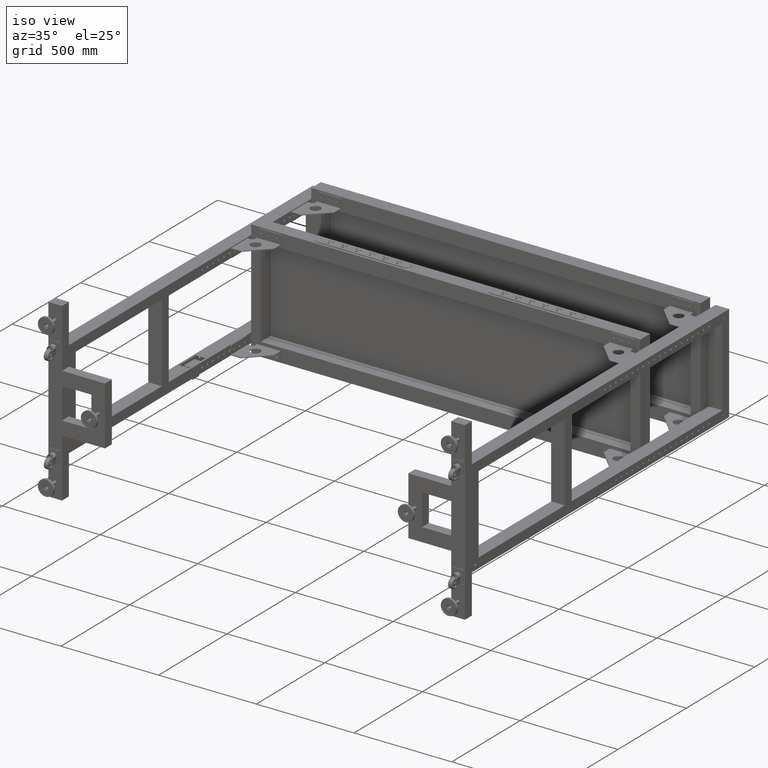
[diagram: clean part render]
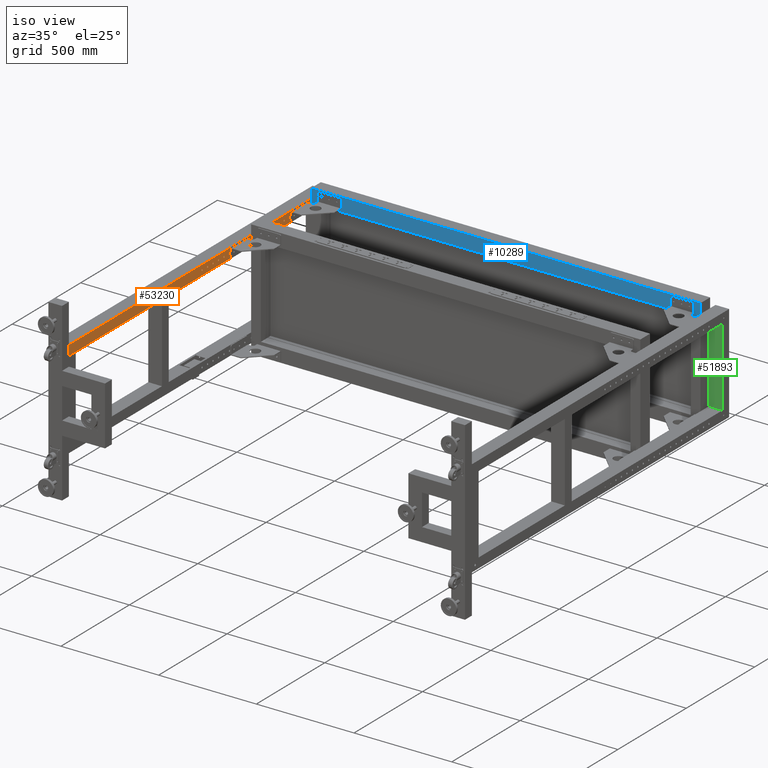
[diagram: same view with three faces highlighted in distinct colors, each labeled with its STEP entity id]
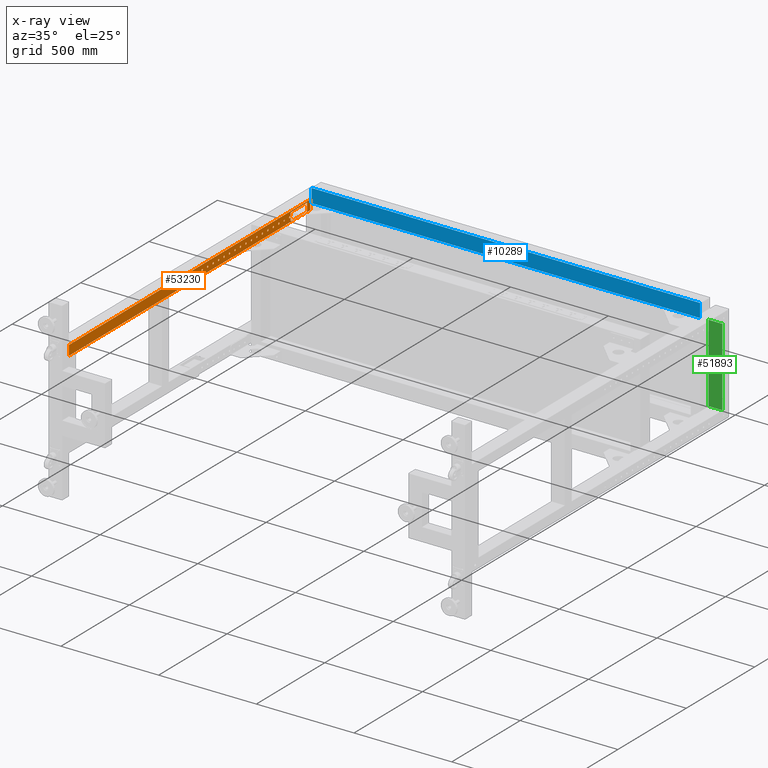
[diagram: x-ray of the same camera — body ghosted, the three highlighted faces saturated]
A machine part, iso view with three faces highlighted in distinct colors.
The next image is the same camera in x-ray (body ghosted, the three faces saturated) — at least one of them is partly hidden behind the body in this view.
Their STEP definitions:

[orange] entity #53230 — the highlighted planar face has unit normal (-1, 0, 0).
#255 = CARTESIAN_POINT ( 'NONE',  ( -1268.172487437185055, 364.9410804020110959, 224.9999999999963336 ) ) ;
#304 = ORIENTED_EDGE ( 'NONE', *, *, #18096, .F. ) ;
#443 = DIRECTION ( 'NONE',  ( 1.000000000000000000, 0.000000000000000000, 0.000000000000000000 ) ) ;
#585 = VERTEX_POINT ( 'NONE', #9826 ) ;
#763 = VERTEX_POINT ( 'NONE', #42934 ) ;
#844 = EDGE_CURVE ( 'NONE', #18173, #3304, #72174, .T. ) ;
#950 = AXIS2_PLACEMENT_3D ( 'NONE', #33397, #32191, #2284 ) ;
#1334 = EDGE_CURVE ( 'NONE', #63176, #585, #38440, .T. ) ;
#1616 = CARTESIAN_POINT ( 'NONE',  ( -1268.172487437185055, 919.4410804020111527, 199.9999999999999716 ) ) ;
#1707 = ORIENTED_EDGE ( 'NONE', *, *, #4504, .T. ) ;
#2150 = EDGE_CURVE ( 'NONE', #75095, #62785, #9553, .T. ) ;
#2190 = EDGE_CURVE ( 'NONE', #62785, #75095, #39591, .T. ) ;
#2284 = DIRECTION ( 'NONE',  ( 0.000000000000000000, 1.000000000000000000, 0.000000000000000000 ) ) ;
#2298 = EDGE_CURVE ( 'NONE', #25964, #11524, #22629, .T. ) ;
#2352 = EDGE_LOOP ( 'NONE', ( #54598, #62396 ) ) ;
#2911 = DIRECTION ( 'NONE',  ( 1.000000000000000000, 0.000000000000000000, 0.000000000000000000 ) ) ;
#3152 = AXIS2_PLACEMENT_3D ( 'NONE', #21071, #46467, #34201 ) ;
#3162 = CIRCLE ( 'NONE', #73711, 4.500000000000059508 ) ;
#3205 = ORIENTED_EDGE ( 'NONE', *, *, #59748, .T. ) ;
#3304 = VERTEX_POINT ( 'NONE', #31619 ) ;
#3350 = FACE_BOUND ( 'NONE', #62512, .T. ) ;
#3515 = LINE ( 'NONE', #28465, #47273 ) ;
#3748 = DIRECTION ( 'NONE',  ( 0.000000000000000000, -1.000000000000000000, 0.000000000000000000 ) ) ;
#4258 = DIRECTION ( 'NONE',  ( 0.000000000000000000, 1.000000000000000000, 0.000000000000000000 ) ) ;
#4504 = EDGE_CURVE ( 'NONE', #14415, #30715, #23072, .T. ) ;
#4596 = DIRECTION ( 'NONE',  ( 1.000000000000000000, 0.000000000000000000, 0.000000000000000000 ) ) ;
#4684 = CARTESIAN_POINT ( 'NONE',  ( -1268.172487437185055, -844.5589195979888473, 199.9999999999999716 ) ) ;
#4725 = AXIS2_PLACEMENT_3D ( 'NONE', #80075, #55517, #71683 ) ;
#4988 = CARTESIAN_POINT ( 'NONE',  ( -1268.172487437185055, 533.9410804020110390, 224.9999999999974705 ) ) ;
#5085 = EDGE_CURVE ( 'NONE', #763, #25044, #35966, .T. ) ;
#5182 = CARTESIAN_POINT ( 'NONE',  ( -1268.172487437185055, 729.4410804020110390, 224.9999999999988631 ) ) ;
#5866 = EDGE_LOOP ( 'NONE', ( #71633, #62688 ) ) ;
#5903 = CIRCLE ( 'NONE', #58185, 4.500000000000059508 ) ;
#5966 = DIRECTION ( 'NONE',  ( 0.000000000000000000, 1.000000000000000000, 0.000000000000000000 ) ) ;
#6259 = DIRECTION ( 'NONE',  ( 0.000000000000000000, 1.000000000000000000, 0.000000000000000000 ) ) ;
#6317 = VERTEX_POINT ( 'NONE', #53225 ) ;
#6800 = CIRCLE ( 'NONE', #27697, 4.499999999999948486 ) ;
#6907 = AXIS2_PLACEMENT_3D ( 'NONE', #38563, #7851, #19297 ) ;
#6953 = AXIS2_PLACEMENT_3D ( 'NONE', #66682, #2911, #46669 ) ;
#7021 = ORIENTED_EDGE ( 'NONE', *, *, #52896, .F. ) ;
#7024 = ORIENTED_EDGE ( 'NONE', *, *, #48339, .F. ) ;
#7488 = AXIS2_PLACEMENT_3D ( 'NONE', #31889, #61743, #56835 ) ;
#7680 = ORIENTED_EDGE ( 'NONE', *, *, #20354, .F. ) ;
#7851 = DIRECTION ( 'NONE',  ( 1.000000000000000000, 0.000000000000000000, 0.000000000000000000 ) ) ;
#7970 = CARTESIAN_POINT ( 'NONE',  ( -1268.172487437185055, 444.9410804020111527, 224.9999999999969020 ) ) ;
#8279 = AXIS2_PLACEMENT_3D ( 'NONE', #26239, #38539, #57746 ) ;
#8621 = ORIENTED_EDGE ( 'NONE', *, *, #48824, .F. ) ;
#8665 = FACE_BOUND ( 'NONE', #2352, .T. ) ;
#8751 = DIRECTION ( 'NONE',  ( 1.000000000000000000, 0.000000000000000000, 0.000000000000000000 ) ) ;
#9067 = FACE_BOUND ( 'NONE', #19549, .T. ) ;
#9272 = AXIS2_PLACEMENT_3D ( 'NONE', #74602, #61511, #23842 ) ;
#9460 = CARTESIAN_POINT ( 'NONE',  ( -1268.172487437185055, 173.9410804020110675, 224.9999999999949409 ) ) ;
#9553 = CIRCLE ( 'NONE', #27842, 4.499999999999948486 ) ;
#9826 = CARTESIAN_POINT ( 'NONE',  ( -1268.172487437185055, 484.9410804020110959, 224.9999999999972147 ) ) ;
#9863 = ORIENTED_EDGE ( 'NONE', *, *, #24321, .T. ) ;
#10184 = CARTESIAN_POINT ( 'NONE',  ( -1268.172487437185055, 724.9410804020111527, 224.9999999999988631 ) ) ;
#10392 = CARTESIAN_POINT ( 'NONE',  ( -1268.172487437185964, 782.9410804020111527, 207.9999999999982094 ) ) ;
#10660 = CIRCLE ( 'NONE', #56422, 4.500000000000059508 ) ;
#10786 = ORIENTED_EDGE ( 'NONE', *, *, #14738, .F. ) ;
#10801 = DIRECTION ( 'NONE',  ( -1.000000000000000000, -2.775557561562891295E-29, -3.491776919586969661E-17 ) ) ;
#10839 = VERTEX_POINT ( 'NONE', #12056 ) ;
#11524 = VERTEX_POINT ( 'NONE', #18685 ) ;
#11618 = CARTESIAN_POINT ( 'NONE',  ( -1268.172487437185055, 453.9410804020110959, 224.9999999999969020 ) ) ;
#11845 = CIRCLE ( 'NONE', #45845, 4.499999999999948486 ) ;
#12056 = CARTESIAN_POINT ( 'NONE',  ( -1268.172487437185055, 204.9410804020110959, 224.9999999999952252 ) ) ;
#12189 = VERTEX_POINT ( 'NONE', #44696 ) ;
#12407 = DIRECTION ( 'NONE',  ( 1.000000000000000000, 0.000000000000000000, 0.000000000000000000 ) ) ;
#12488 = CIRCLE ( 'NONE', #58222, 4.500000000000059508 ) ;
#12525 = CARTESIAN_POINT ( 'NONE',  ( -1268.172487437185055, 209.4410804020111527, 224.9999999999952252 ) ) ;
#12541 = CIRCLE ( 'NONE', #4725, 4.499999999999948486 ) ;
#12589 = EDGE_CURVE ( 'NONE', #66595, #66963, #37346, .T. ) ;
#13206 = VECTOR ( 'NONE', #18726, 1000.000000000000000 ) ;
#13294 = CARTESIAN_POINT ( 'NONE',  ( -1268.172487437185055, 609.4410804020111527, 224.9999999999980389 ) ) ;
#13488 = CARTESIAN_POINT ( 'NONE',  ( -1268.172487437185055, 409.4410804020110959, 224.9999999999966178 ) ) ;
#14273 = DIRECTION ( 'NONE',  ( 0.000000000000000000, 1.000000000000000000, 0.000000000000000000 ) ) ;
#14395 = CARTESIAN_POINT ( 'NONE',  ( -1268.172487437185055, -844.5589195979888473, 249.9999999999999716 ) ) ;
#14415 = VERTEX_POINT ( 'NONE', #59599 ) ;
#14430 = CARTESIAN_POINT ( 'NONE',  ( -1268.172487437185055, 564.9410804020111527, 224.9999999999977547 ) ) ;
#14600 = VERTEX_POINT ( 'NONE', #255 ) ;
#14738 = EDGE_CURVE ( 'NONE', #49971, #66651, #50573, .T. ) ;
#15103 = VERTEX_POINT ( 'NONE', #14395 ) ;
#15377 = EDGE_LOOP ( 'NONE', ( #47824, #43029, #46180, #20370 ) ) ;
#15454 = VERTEX_POINT ( 'NONE', #78040 ) ;
#15579 = FACE_BOUND ( 'NONE', #37793, .T. ) ;
#15922 = DIRECTION ( 'NONE',  ( 0.000000000000000000, 1.000000000000000000, 0.000000000000000000 ) ) ;
#16018 = CIRCLE ( 'NONE', #61801, 4.500000000000059508 ) ;
#16099 = CARTESIAN_POINT ( 'NONE',  ( -1268.172487437185964, 775.9410804020110390, 243.9899999999981901 ) ) ;
#16121 = CARTESIAN_POINT ( 'NONE',  ( -1268.172487437185055, 124.9410804020111243, 224.9999999999946851 ) ) ;
#16323 = EDGE_LOOP ( 'NONE', ( #67372, #40794 ) ) ;
#16465 = LINE ( 'NONE', #58650, #33253 ) ;
#16594 = ORIENTED_EDGE ( 'NONE', *, *, #37376, .F. ) ;
#16615 = EDGE_LOOP ( 'NONE', ( #59078, #48845 ) ) ;
#16635 = VECTOR ( 'NONE', #75260, 1000.000000000000000 ) ;
#16637 = LINE ( 'NONE', #79289, #60169 ) ;
#16937 = CIRCLE ( 'NONE', #36613, 4.499999999999948486 ) ;
#17532 = CARTESIAN_POINT ( 'NONE',  ( -1268.172487437185055, 773.9410804020111527, 224.9999999999991473 ) ) ;
#17624 = AXIS2_PLACEMENT_3D ( 'NONE', #22089, #40924, #64671 ) ;
#18018 = CARTESIAN_POINT ( 'NONE',  ( -1268.172487437185055, 289.4410804020110959, 224.9999999999957936 ) ) ;
#18096 = EDGE_CURVE ( 'NONE', #54607, #69980, #60028, .T. ) ;
#18173 = VERTEX_POINT ( 'NONE', #4988 ) ;
#18685 = CARTESIAN_POINT ( 'NONE',  ( -1268.172487437185055, 133.9410804020111243, 224.9999999999946851 ) ) ;
#18726 = DIRECTION ( 'NONE',  ( 4.498682352102549724E-16, 7.000000000000000150E-15, -1.000000000000000000 ) ) ;
#18988 = DIRECTION ( 'NONE',  ( -1.000000000000000000, -2.775557561562891295E-29, -3.491776919586969661E-17 ) ) ;
#19297 = DIRECTION ( 'NONE',  ( 0.000000000000000000, 1.000000000000000000, 0.000000000000000000 ) ) ;
#19326 = ORIENTED_EDGE ( 'NONE', *, *, #2298, .F. ) ;
#19361 = DIRECTION ( 'NONE',  ( 2.800000000000000233E-29, -1.000000000000000000, -7.000000000000000150E-15 ) ) ;
#19483 = EDGE_LOOP ( 'NONE', ( #24129, #56275 ) ) ;
#19549 = EDGE_LOOP ( 'NONE', ( #29026, #56883 ) ) ;
#20354 = EDGE_CURVE ( 'NONE', #6317, #48976, #36981, .T. ) ;
#20370 = ORIENTED_EDGE ( 'NONE', *, *, #42429, .T. ) ;
#20461 = CARTESIAN_POINT ( 'NONE',  ( -1268.172487437185055, 369.4410804020110959, 224.9999999999963336 ) ) ;
#20508 = EDGE_CURVE ( 'NONE', #68838, #14600, #63091, .T. ) ;
#20570 = EDGE_CURVE ( 'NONE', #72768, #12189, #16018, .T. ) ;
#21071 = CARTESIAN_POINT ( 'NONE',  ( -1268.172487437185055, 489.4410804020110959, 224.9999999999971863 ) ) ;
#21183 = DIRECTION ( 'NONE',  ( 0.000000000000000000, 0.000000000000000000, 1.000000000000000000 ) ) ;
#21198 = DIRECTION ( 'NONE',  ( 0.000000000000000000, 1.000000000000000000, 0.000000000000000000 ) ) ;
#21323 = FACE_BOUND ( 'NONE', #5866, .T. ) ;
#22089 = CARTESIAN_POINT ( 'NONE',  ( -1268.172487437185055, 689.4410804020111527, 224.9999999999985789 ) ) ;
#22140 = FACE_BOUND ( 'NONE', #30405, .T. ) ;
#22419 = CARTESIAN_POINT ( 'NONE',  ( -1268.172487437185055, 729.4410804020110390, 224.9999999999988631 ) ) ;
#22619 = EDGE_CURVE ( 'NONE', #70600, #66651, #3515, .T. ) ;
#22629 = CIRCLE ( 'NONE', #6953, 4.500000000000059508 ) ;
#22896 = CARTESIAN_POINT ( 'NONE',  ( -1268.172487437185055, 249.4410804020110675, 224.9999999999955094 ) ) ;
#23072 = LINE ( 'NONE', #73007, #76419 ) ;
#23528 = CARTESIAN_POINT ( 'NONE',  ( -1268.172487437185055, 169.4410804020111243, 224.9999999999949409 ) ) ;
#23811 = EDGE_CURVE ( 'NONE', #25044, #763, #6800, .T. ) ;
#23842 = DIRECTION ( 'NONE',  ( 0.000000000000000000, 1.000000000000000000, 0.000000000000000000 ) ) ;
#24022 = ORIENTED_EDGE ( 'NONE', *, *, #2150, .F. ) ;
#24068 = DIRECTION ( 'NONE',  ( 1.000000000000000000, 0.000000000000000000, 0.000000000000000000 ) ) ;
#24129 = ORIENTED_EDGE ( 'NONE', *, *, #38270, .F. ) ;
#24251 = CARTESIAN_POINT ( 'NONE',  ( -1268.172487437185055, 244.9410804020111243, 224.9999999999955094 ) ) ;
#24321 = EDGE_CURVE ( 'NONE', #49971, #40949, #64138, .T. ) ;
#24495 = CARTESIAN_POINT ( 'NONE',  ( -1268.172487437185964, 896.9410804020112664, 207.9999999999990052 ) ) ;
#25044 = VERTEX_POINT ( 'NONE', #37788 ) ;
#25149 = VERTEX_POINT ( 'NONE', #63150 ) ;
#25916 = AXIS2_PLACEMENT_3D ( 'NONE', #30338, #41785, #42999 ) ;
#25964 = VERTEX_POINT ( 'NONE', #16121 ) ;
#26239 = CARTESIAN_POINT ( 'NONE',  ( -1268.172487437185055, 569.4410804020111527, 224.9999999999977547 ) ) ;
#26543 = EDGE_LOOP ( 'NONE', ( #64038, #31502 ) ) ;
#27078 = DIRECTION ( 'NONE',  ( -1.000000000000000000, 0.000000000000000000, 0.000000000000000000 ) ) ;
#27254 = AXIS2_PLACEMENT_3D ( 'NONE', #10392, #10801, #35772 ) ;
#27483 = FACE_BOUND ( 'NONE', #19483, .T. ) ;
#27504 = CIRCLE ( 'NONE', #77161, 4.500000000000059508 ) ;
#27697 = AXIS2_PLACEMENT_3D ( 'NONE', #40675, #60302, #4258 ) ;
#27838 = DIRECTION ( 'NONE',  ( 1.000000000000000000, 0.000000000000000000, 0.000000000000000000 ) ) ;
#27842 = AXIS2_PLACEMENT_3D ( 'NONE', #50818, #64279, #75764 ) ;
#27893 = FACE_BOUND ( 'NONE', #67918, .T. ) ;
#28210 = AXIS2_PLACEMENT_3D ( 'NONE', #5182, #48558, #37098 ) ;
#28297 = FACE_BOUND ( 'NONE', #69956, .T. ) ;
#28406 = DIRECTION ( 'NONE',  ( 2.800000000000000233E-29, -1.000000000000000000, -7.000000000000000150E-15 ) ) ;
#28452 = DIRECTION ( 'NONE',  ( 1.000000000000000000, 0.000000000000000000, 0.000000000000000000 ) ) ;
#28465 = CARTESIAN_POINT ( 'NONE',  ( -1268.172487437185964, 775.9410804020110390, 243.9999999999984368 ) ) ;
#28969 = DIRECTION ( 'NONE',  ( 0.000000000000000000, 1.000000000000000000, 0.000000000000000000 ) ) ;
#29026 = ORIENTED_EDGE ( 'NONE', *, *, #20508, .F. ) ;
#29371 = CARTESIAN_POINT ( 'NONE',  ( -1268.172487437185055, 293.9410804020111527, 224.9999999999957936 ) ) ;
#29839 = CARTESIAN_POINT ( 'NONE',  ( -1268.172487437185055, 733.9410804020111527, 224.9999999999988631 ) ) ;
#29905 = CIRCLE ( 'NONE', #27254, 7.000000000000006217 ) ;
#29926 = CIRCLE ( 'NONE', #73011, 4.499999999999948486 ) ;
#30143 = DIRECTION ( 'NONE',  ( 1.000000000000000000, 0.000000000000000000, 0.000000000000000000 ) ) ;
#30338 = CARTESIAN_POINT ( 'NONE',  ( -1268.172487437185055, 209.4410804020111527, 224.9999999999952252 ) ) ;
#30405 = EDGE_LOOP ( 'NONE', ( #74976, #78472 ) ) ;
#30519 = VERTEX_POINT ( 'NONE', #38184 ) ;
#30715 = VERTEX_POINT ( 'NONE', #72886 ) ;
#31081 = CIRCLE ( 'NONE', #46763, 4.499999999999948486 ) ;
#31336 = DIRECTION ( 'NONE',  ( 1.000000000000000000, 0.000000000000000000, 0.000000000000000000 ) ) ;
#31502 = ORIENTED_EDGE ( 'NONE', *, *, #59026, .F. ) ;
#31619 = CARTESIAN_POINT ( 'NONE',  ( -1268.172487437185055, 524.9410804020111527, 224.9999999999974705 ) ) ;
#31715 = DIRECTION ( 'NONE',  ( 1.000000000000000000, 0.000000000000000000, 0.000000000000000000 ) ) ;
#31889 = CARTESIAN_POINT ( 'NONE',  ( -1268.172487437185055, 489.4410804020110959, 224.9999999999971863 ) ) ;
#32066 = CARTESIAN_POINT ( 'NONE',  ( -1268.172487437185055, 409.4410804020110959, 224.9999999999966178 ) ) ;
#32131 = EDGE_LOOP ( 'NONE', ( #45094, #7680 ) ) ;
#32191 = DIRECTION ( 'NONE',  ( 1.000000000000000000, 0.000000000000000000, 0.000000000000000000 ) ) ;
#32236 = CARTESIAN_POINT ( 'NONE',  ( -1268.172487437185964, 775.9410804020112664, 207.9999999999981526 ) ) ;
#32476 = CIRCLE ( 'NONE', #25916, 4.500000000000059508 ) ;
#32659 = AXIS2_PLACEMENT_3D ( 'NONE', #49176, #4596, #74122 ) ;
#32795 = CARTESIAN_POINT ( 'NONE',  ( -1268.172487437185055, 493.9410804020110959, 224.9999999999971863 ) ) ;
#32910 = CARTESIAN_POINT ( 'NONE',  ( -1268.172487437185964, 775.9410804020110390, 243.9899999999981901 ) ) ;
#33253 = VECTOR ( 'NONE', #34922, 1000.000000000000000 ) ;
#33397 = CARTESIAN_POINT ( 'NONE',  ( -1268.172487437185055, 329.4410804020111527, 224.9999999999960778 ) ) ;
#33638 = FACE_BOUND ( 'NONE', #41228, .T. ) ;
#33839 = EDGE_CURVE ( 'NONE', #60948, #10839, #56632, .T. ) ;
#33889 = DIRECTION ( 'NONE',  ( 0.000000000000000000, 1.000000000000000000, 0.000000000000000000 ) ) ;
#34201 = DIRECTION ( 'NONE',  ( 0.000000000000000000, 1.000000000000000000, 0.000000000000000000 ) ) ;
#34263 = VERTEX_POINT ( 'NONE', #4684 ) ;
#34316 = LINE ( 'NONE', #1616, #62751 ) ;
#34922 = DIRECTION ( 'NONE',  ( 0.000000000000000000, 0.000000000000000000, 1.000000000000000000 ) ) ;
#35079 = VERTEX_POINT ( 'NONE', #7970 ) ;
#35142 = AXIS2_PLACEMENT_3D ( 'NONE', #51336, #18988, #51738 ) ;
#35772 = DIRECTION ( 'NONE',  ( 0.000000000000000000, 0.000000000000000000, 1.000000000000000000 ) ) ;
#35872 = DIRECTION ( 'NONE',  ( 1.000000000000000000, 0.000000000000000000, 0.000000000000000000 ) ) ;
#35966 = CIRCLE ( 'NONE', #17624, 4.499999999999948486 ) ;
#36204 = CIRCLE ( 'NONE', #950, 4.500000000000059508 ) ;
#36234 = AXIS2_PLACEMENT_3D ( 'NONE', #78634, #27078, #3748 ) ;
#36470 = EDGE_CURVE ( 'NONE', #14600, #68838, #3162, .T. ) ;
#36613 = AXIS2_PLACEMENT_3D ( 'NONE', #53502, #78455, #33889 ) ;
#36859 = EDGE_LOOP ( 'NONE', ( #47590, #59265 ) ) ;
#36967 = CARTESIAN_POINT ( 'NONE',  ( -1268.172487437185055, 249.4410804020110675, 224.9999999999955094 ) ) ;
#36981 = CIRCLE ( 'NONE', #64353, 4.499999999999948486 ) ;
#37098 = DIRECTION ( 'NONE',  ( 0.000000000000000000, 1.000000000000000000, 0.000000000000000000 ) ) ;
#37216 = DIRECTION ( 'NONE',  ( 0.000000000000000000, 1.000000000000000000, 0.000000000000000000 ) ) ;
#37308 = CARTESIAN_POINT ( 'NONE',  ( -1268.172487437185055, 649.4410804020110390, 224.9999999999983231 ) ) ;
#37346 = CIRCLE ( 'NONE', #45218, 4.500000000000059508 ) ;
#37376 = EDGE_CURVE ( 'NONE', #25149, #55292, #5903, .T. ) ;
#37567 = CARTESIAN_POINT ( 'NONE',  ( -1268.172487437185055, 333.9410804020110959, 224.9999999999960778 ) ) ;
#37758 = FACE_OUTER_BOUND ( 'NONE', #15377, .T. ) ;
#37788 = CARTESIAN_POINT ( 'NONE',  ( -1268.172487437185055, 684.9410804020110390, 224.9999999999985789 ) ) ;
#37793 = EDGE_LOOP ( 'NONE', ( #8621, #53345 ) ) ;
#37844 = CIRCLE ( 'NONE', #58727, 4.499999999999948486 ) ;
#38184 = CARTESIAN_POINT ( 'NONE',  ( -1268.172487437185055, 604.9410804020111527, 224.9999999999980389 ) ) ;
#38270 = EDGE_CURVE ( 'NONE', #60655, #59306, #71357, .T. ) ;
#38306 = EDGE_CURVE ( 'NONE', #61603, #35079, #12541, .T. ) ;
#38440 = CIRCLE ( 'NONE', #3152, 4.500000000000003553 ) ;
#38527 = DIRECTION ( 'NONE',  ( 1.000000000000000000, 0.000000000000000000, 0.000000000000000000 ) ) ;
#38539 = DIRECTION ( 'NONE',  ( 1.000000000000000000, 0.000000000000000000, 0.000000000000000000 ) ) ;
#38563 = CARTESIAN_POINT ( 'NONE',  ( -1268.172487437185055, 449.4410804020111527, 224.9999999999969020 ) ) ;
#38971 = CARTESIAN_POINT ( 'NONE',  ( -1268.172487437185055, 653.9410804020111527, 224.9999999999983231 ) ) ;
#39362 = CIRCLE ( 'NONE', #9272, 4.499999999999948486 ) ;
#39591 = CIRCLE ( 'NONE', #8279, 4.499999999999948486 ) ;
#39687 = VERTEX_POINT ( 'NONE', #17532 ) ;
#40059 = CARTESIAN_POINT ( 'NONE',  ( -1268.172487437185055, 613.9410804020111527, 224.9999999999980389 ) ) ;
#40232 = CARTESIAN_POINT ( 'NONE',  ( -1268.172487437185055, 404.9410804020111527, 224.9999999999966178 ) ) ;
#40675 = CARTESIAN_POINT ( 'NONE',  ( -1268.172487437185055, 689.4410804020111527, 224.9999999999985789 ) ) ;
#40794 = ORIENTED_EDGE ( 'NONE', *, *, #12589, .F. ) ;
#40924 = DIRECTION ( 'NONE',  ( 1.000000000000000000, 0.000000000000000000, 0.000000000000000000 ) ) ;
#40949 = VERTEX_POINT ( 'NONE', #24495 ) ;
#41012 = EDGE_CURVE ( 'NONE', #15103, #15454, #67488, .T. ) ;
#41228 = EDGE_LOOP ( 'NONE', ( #7024, #60784 ) ) ;
#41785 = DIRECTION ( 'NONE',  ( 1.000000000000000000, 0.000000000000000000, 0.000000000000000000 ) ) ;
#41971 = DIRECTION ( 'NONE',  ( 0.000000000000000000, 1.000000000000000000, 0.000000000000000000 ) ) ;
#42098 = DIRECTION ( 'NONE',  ( 0.000000000000000000, 1.000000000000000000, 0.000000000000000000 ) ) ;
#42350 = EDGE_CURVE ( 'NONE', #54580, #15454, #34316, .T. ) ;
#42429 = EDGE_CURVE ( 'NONE', #34263, #54580, #16637, .T. ) ;
#42934 = CARTESIAN_POINT ( 'NONE',  ( -1268.172487437185055, 693.9410804020110390, 224.9999999999985789 ) ) ;
#42999 = DIRECTION ( 'NONE',  ( 0.000000000000000000, 1.000000000000000000, 0.000000000000000000 ) ) ;
#43029 = ORIENTED_EDGE ( 'NONE', *, *, #41012, .F. ) ;
#43303 = CARTESIAN_POINT ( 'NONE',  ( -1268.172487437185055, 609.4410804020111527, 224.9999999999980389 ) ) ;
#43440 = CARTESIAN_POINT ( 'NONE',  ( -1268.172487437185055, 919.4410804020135402, 199.9999999999999716 ) ) ;
#43919 = EDGE_CURVE ( 'NONE', #585, #63176, #44044, .T. ) ;
#44044 = CIRCLE ( 'NONE', #7488, 4.500000000000003553 ) ;
#44569 = AXIS2_PLACEMENT_3D ( 'NONE', #36967, #67638, #6259 ) ;
#44696 = CARTESIAN_POINT ( 'NONE',  ( -1268.172487437185055, 253.9410804020111243, 224.9999999999955094 ) ) ;
#45094 = ORIENTED_EDGE ( 'NONE', *, *, #60943, .F. ) ;
#45218 = AXIS2_PLACEMENT_3D ( 'NONE', #13488, #443, #14273 ) ;
#45845 = AXIS2_PLACEMENT_3D ( 'NONE', #13294, #31336, #5966 ) ;
#46180 = ORIENTED_EDGE ( 'NONE', *, *, #51739, .F. ) ;
#46467 = DIRECTION ( 'NONE',  ( 1.000000000000000000, 0.000000000000000000, 0.000000000000000000 ) ) ;
#46669 = DIRECTION ( 'NONE',  ( 0.000000000000000000, 1.000000000000000000, 0.000000000000000000 ) ) ;
#46763 = AXIS2_PLACEMENT_3D ( 'NONE', #68860, #12407, #62327 ) ;
#46869 = CARTESIAN_POINT ( 'NONE',  ( -1268.172487437185055, 573.9410804020110390, 224.9999999999977547 ) ) ;
#47115 = FACE_BOUND ( 'NONE', #70642, .T. ) ;
#47273 = VECTOR ( 'NONE', #78394, 1000.000000000000000 ) ;
#47372 = CIRCLE ( 'NONE', #6907, 4.499999999999948486 ) ;
#47427 = ORIENTED_EDGE ( 'NONE', *, *, #63893, .F. ) ;
#47530 = FACE_BOUND ( 'NONE', #36859, .T. ) ;
#47590 = ORIENTED_EDGE ( 'NONE', *, *, #75074, .F. ) ;
#47824 = ORIENTED_EDGE ( 'NONE', *, *, #42350, .T. ) ;
#48189 = ORIENTED_EDGE ( 'NONE', *, *, #23811, .F. ) ;
#48227 = EDGE_CURVE ( 'NONE', #69980, #54607, #27504, .T. ) ;
#48339 = EDGE_CURVE ( 'NONE', #70385, #30519, #11845, .T. ) ;
#48558 = DIRECTION ( 'NONE',  ( 1.000000000000000000, 0.000000000000000000, 0.000000000000000000 ) ) ;
#48824 = EDGE_CURVE ( 'NONE', #12189, #72768, #55021, .T. ) ;
#48834 = EDGE_CURVE ( 'NONE', #3304, #18173, #39362, .T. ) ;
#48845 = ORIENTED_EDGE ( 'NONE', *, *, #48834, .F. ) ;
#48976 = VERTEX_POINT ( 'NONE', #38971 ) ;
#49176 = CARTESIAN_POINT ( 'NONE',  ( -1268.172487437185055, 169.4410804020111243, 224.9999999999949409 ) ) ;
#49702 = CARTESIAN_POINT ( 'NONE',  ( -1268.172487437185055, 129.4410804020110675, 224.9999999999946851 ) ) ;
#49971 = VERTEX_POINT ( 'NONE', #72047 ) ;
#50379 = CARTESIAN_POINT ( 'NONE',  ( -1268.172487437185055, 764.9410804020111527, 224.9999999999991473 ) ) ;
#50573 = LINE ( 'NONE', #16099, #69178 ) ;
#50806 = CARTESIAN_POINT ( 'NONE',  ( -1268.172487437185055, 324.9410804020110959, 224.9999999999960778 ) ) ;
#50818 = CARTESIAN_POINT ( 'NONE',  ( -1268.172487437185055, 569.4410804020111527, 224.9999999999977547 ) ) ;
#51297 = AXIS2_PLACEMENT_3D ( 'NONE', #75656, #69508, #37216 ) ;
#51336 = CARTESIAN_POINT ( 'NONE',  ( -1268.172487437185964, 889.9410804020111527, 207.9999999999989768 ) ) ;
#51626 = DIRECTION ( 'NONE',  ( 0.000000000000000000, 1.000000000000000000, 0.000000000000000000 ) ) ;
#51738 = DIRECTION ( 'NONE',  ( 0.000000000000000000, 0.000000000000000000, 1.000000000000000000 ) ) ;
#51739 = EDGE_CURVE ( 'NONE', #34263, #15103, #16465, .T. ) ;
#51917 = ORIENTED_EDGE ( 'NONE', *, *, #48227, .F. ) ;
#52057 = PLANE ( 'NONE',  #36234 ) ;
#52822 = DIRECTION ( 'NONE',  ( 0.000000000000000000, 1.000000000000000000, 0.000000000000000000 ) ) ;
#52896 = EDGE_CURVE ( 'NONE', #55292, #25149, #12488, .T. ) ;
#52964 = CARTESIAN_POINT ( 'NONE',  ( -1268.172487437185055, 289.4410804020110959, 224.9999999999957936 ) ) ;
#53195 = CARTESIAN_POINT ( 'NONE',  ( -1268.172487437185055, 769.4410804020110390, 224.9999999999991473 ) ) ;
#53225 = CARTESIAN_POINT ( 'NONE',  ( -1268.172487437185055, 644.9410804020110390, 224.9999999999983231 ) ) ;
#53230 = ADVANCED_FACE ( 'NONE', ( #37758, #22140, #27483, #28297, #72484, #33638, #59784, #64720, #8665, #21323, #59394, #9067, #47530, #3350, #15579, #53261, #27893, #47115, #58575 ), #52057, .F. ) ;
#53261 = FACE_BOUND ( 'NONE', #26543, .T. ) ;
#53345 = ORIENTED_EDGE ( 'NONE', *, *, #20570, .F. ) ;
#53378 = AXIS2_PLACEMENT_3D ( 'NONE', #43303, #24068, #42098 ) ;
#53423 = DIRECTION ( 'NONE',  ( 0.000000000000000000, 1.000000000000000000, 0.000000000000000000 ) ) ;
#53502 = CARTESIAN_POINT ( 'NONE',  ( -1268.172487437185055, 649.4410804020110390, 224.9999999999983231 ) ) ;
#53884 = DIRECTION ( 'NONE',  ( 0.000000000000000000, 1.000000000000000000, 0.000000000000000000 ) ) ;
#54580 = VERTEX_POINT ( 'NONE', #43440 ) ;
#54598 = ORIENTED_EDGE ( 'NONE', *, *, #1334, .F. ) ;
#54607 = VERTEX_POINT ( 'NONE', #67587 ) ;
#54854 = ORIENTED_EDGE ( 'NONE', *, *, #5085, .F. ) ;
#55021 = CIRCLE ( 'NONE', #44569, 4.500000000000059508 ) ;
#55217 = CARTESIAN_POINT ( 'NONE',  ( -1268.172487437185055, -844.5589195979888473, 249.9999999999999716 ) ) ;
#55292 = VERTEX_POINT ( 'NONE', #29371 ) ;
#55517 = DIRECTION ( 'NONE',  ( 1.000000000000000000, 0.000000000000000000, 0.000000000000000000 ) ) ;
#56275 = ORIENTED_EDGE ( 'NONE', *, *, #65045, .F. ) ;
#56422 = AXIS2_PLACEMENT_3D ( 'NONE', #49702, #31715, #74665 ) ;
#56632 = CIRCLE ( 'NONE', #67053, 4.500000000000059508 ) ;
#56835 = DIRECTION ( 'NONE',  ( 0.000000000000000000, 1.000000000000000000, 0.000000000000000000 ) ) ;
#56883 = ORIENTED_EDGE ( 'NONE', *, *, #36470, .F. ) ;
#57251 = ORIENTED_EDGE ( 'NONE', *, *, #77894, .T. ) ;
#57746 = DIRECTION ( 'NONE',  ( 0.000000000000000000, 1.000000000000000000, 0.000000000000000000 ) ) ;
#57783 = EDGE_CURVE ( 'NONE', #74585, #57849, #36204, .T. ) ;
#57849 = VERTEX_POINT ( 'NONE', #37567 ) ;
#58185 = AXIS2_PLACEMENT_3D ( 'NONE', #18018, #73706, #68368 ) ;
#58222 = AXIS2_PLACEMENT_3D ( 'NONE', #52964, #8751, #78724 ) ;
#58575 = FACE_BOUND ( 'NONE', #62401, .T. ) ;
#58650 = CARTESIAN_POINT ( 'NONE',  ( -1268.172487437185055, -844.5589195979888473, 199.9999999999999716 ) ) ;
#58688 = EDGE_CURVE ( 'NONE', #73106, #39687, #31081, .T. ) ;
#58727 = AXIS2_PLACEMENT_3D ( 'NONE', #53195, #78148, #15922 ) ;
#59026 = EDGE_CURVE ( 'NONE', #10839, #60948, #32476, .T. ) ;
#59078 = ORIENTED_EDGE ( 'NONE', *, *, #844, .F. ) ;
#59265 = ORIENTED_EDGE ( 'NONE', *, *, #57783, .F. ) ;
#59306 = VERTEX_POINT ( 'NONE', #10184 ) ;
#59394 = FACE_BOUND ( 'NONE', #16323, .T. ) ;
#59449 = EDGE_CURVE ( 'NONE', #30519, #70385, #70356, .T. ) ;
#59564 = AXIS2_PLACEMENT_3D ( 'NONE', #32066, #80367, #74610 ) ;
#59599 = CARTESIAN_POINT ( 'NONE',  ( -1268.172487437185737, 889.9410804020113801, 200.9999999999989484 ) ) ;
#59660 = DIRECTION ( 'NONE',  ( 1.000000000000000000, 0.000000000000000000, 0.000000000000000000 ) ) ;
#59748 = EDGE_CURVE ( 'NONE', #30715, #70600, #29905, .T. ) ;
#59784 = FACE_BOUND ( 'NONE', #71533, .T. ) ;
#60028 = CIRCLE ( 'NONE', #32659, 4.500000000000059508 ) ;
#60169 = VECTOR ( 'NONE', #28969, 1000.000000000000000 ) ;
#60302 = DIRECTION ( 'NONE',  ( 1.000000000000000000, 0.000000000000000000, 0.000000000000000000 ) ) ;
#60631 = EDGE_CURVE ( 'NONE', #39687, #73106, #37844, .T. ) ;
#60655 = VERTEX_POINT ( 'NONE', #29839 ) ;
#60784 = ORIENTED_EDGE ( 'NONE', *, *, #59449, .F. ) ;
#60852 = CIRCLE ( 'NONE', #59564, 4.500000000000059508 ) ;
#60943 = EDGE_CURVE ( 'NONE', #48976, #6317, #16937, .T. ) ;
#60948 = VERTEX_POINT ( 'NONE', #77660 ) ;
#61160 = AXIS2_PLACEMENT_3D ( 'NONE', #66476, #28452, #53423 ) ;
#61511 = DIRECTION ( 'NONE',  ( 1.000000000000000000, 0.000000000000000000, 0.000000000000000000 ) ) ;
#61603 = VERTEX_POINT ( 'NONE', #11618 ) ;
#61743 = DIRECTION ( 'NONE',  ( 1.000000000000000000, 0.000000000000000000, 0.000000000000000000 ) ) ;
#61801 = AXIS2_PLACEMENT_3D ( 'NONE', #22896, #27838, #52822 ) ;
#62327 = DIRECTION ( 'NONE',  ( 0.000000000000000000, 1.000000000000000000, 0.000000000000000000 ) ) ;
#62396 = ORIENTED_EDGE ( 'NONE', *, *, #43919, .F. ) ;
#62401 = EDGE_LOOP ( 'NONE', ( #1707, #3205, #69280, #10786, #9863, #57251 ) ) ;
#62512 = EDGE_LOOP ( 'NONE', ( #7021, #16594 ) ) ;
#62688 = ORIENTED_EDGE ( 'NONE', *, *, #69925, .F. ) ;
#62751 = VECTOR ( 'NONE', #21183, 1000.000000000000000 ) ;
#62785 = VERTEX_POINT ( 'NONE', #14430 ) ;
#63091 = CIRCLE ( 'NONE', #68273, 4.500000000000059508 ) ;
#63150 = CARTESIAN_POINT ( 'NONE',  ( -1268.172487437185055, 284.9410804020111527, 224.9999999999957936 ) ) ;
#63176 = VERTEX_POINT ( 'NONE', #32795 ) ;
#63893 = EDGE_CURVE ( 'NONE', #11524, #25964, #10660, .T. ) ;
#64038 = ORIENTED_EDGE ( 'NONE', *, *, #33839, .F. ) ;
#64138 = LINE ( 'NONE', #69069, #13206 ) ;
#64279 = DIRECTION ( 'NONE',  ( 1.000000000000000000, 0.000000000000000000, 0.000000000000000000 ) ) ;
#64353 = AXIS2_PLACEMENT_3D ( 'NONE', #37308, #68395, #75352 ) ;
#64671 = DIRECTION ( 'NONE',  ( 0.000000000000000000, 1.000000000000000000, 0.000000000000000000 ) ) ;
#64720 = FACE_BOUND ( 'NONE', #16615, .T. ) ;
#65045 = EDGE_CURVE ( 'NONE', #59306, #60655, #29926, .T. ) ;
#65127 = CIRCLE ( 'NONE', #61160, 4.500000000000059508 ) ;
#66117 = DIRECTION ( 'NONE',  ( 1.000000000000000000, 0.000000000000000000, 0.000000000000000000 ) ) ;
#66476 = CARTESIAN_POINT ( 'NONE',  ( -1268.172487437185055, 329.4410804020111527, 224.9999999999960778 ) ) ;
#66595 = VERTEX_POINT ( 'NONE', #40232 ) ;
#66651 = VERTEX_POINT ( 'NONE', #32910 ) ;
#66682 = CARTESIAN_POINT ( 'NONE',  ( -1268.172487437185055, 129.4410804020110675, 224.9999999999946851 ) ) ;
#66963 = VERTEX_POINT ( 'NONE', #77397 ) ;
#67053 = AXIS2_PLACEMENT_3D ( 'NONE', #12525, #30143, #80486 ) ;
#67372 = ORIENTED_EDGE ( 'NONE', *, *, #72767, .F. ) ;
#67488 = LINE ( 'NONE', #55217, #16635 ) ;
#67587 = CARTESIAN_POINT ( 'NONE',  ( -1268.172487437185055, 164.9410804020111527, 224.9999999999949409 ) ) ;
#67638 = DIRECTION ( 'NONE',  ( 1.000000000000000000, 0.000000000000000000, 0.000000000000000000 ) ) ;
#67831 = CARTESIAN_POINT ( 'NONE',  ( -1268.172487437185055, 373.9410804020111527, 224.9999999999963336 ) ) ;
#67918 = EDGE_LOOP ( 'NONE', ( #51917, #304 ) ) ;
#68273 = AXIS2_PLACEMENT_3D ( 'NONE', #20461, #38527, #51626 ) ;
#68368 = DIRECTION ( 'NONE',  ( 0.000000000000000000, 1.000000000000000000, 0.000000000000000000 ) ) ;
#68395 = DIRECTION ( 'NONE',  ( 1.000000000000000000, 0.000000000000000000, 0.000000000000000000 ) ) ;
#68838 = VERTEX_POINT ( 'NONE', #67831 ) ;
#68860 = CARTESIAN_POINT ( 'NONE',  ( -1268.172487437185055, 769.4410804020110390, 224.9999999999991473 ) ) ;
#69069 = CARTESIAN_POINT ( 'NONE',  ( -1268.172487437185964, 896.9410804020110390, 243.9999999999992895 ) ) ;
#69178 = VECTOR ( 'NONE', #28406, 1000.000000000000000 ) ;
#69280 = ORIENTED_EDGE ( 'NONE', *, *, #22619, .T. ) ;
#69508 = DIRECTION ( 'NONE',  ( 1.000000000000000000, 0.000000000000000000, 0.000000000000000000 ) ) ;
#69925 = EDGE_CURVE ( 'NONE', #35079, #61603, #47372, .T. ) ;
#69956 = EDGE_LOOP ( 'NONE', ( #54854, #48189 ) ) ;
#69980 = VERTEX_POINT ( 'NONE', #9460 ) ;
#70356 = CIRCLE ( 'NONE', #53378, 4.499999999999948486 ) ;
#70385 = VERTEX_POINT ( 'NONE', #40059 ) ;
#70405 = CIRCLE ( 'NONE', #35142, 7.000000000000006217 ) ;
#70600 = VERTEX_POINT ( 'NONE', #32236 ) ;
#70642 = EDGE_LOOP ( 'NONE', ( #47427, #19326 ) ) ;
#71357 = CIRCLE ( 'NONE', #28210, 4.499999999999948486 ) ;
#71533 = EDGE_LOOP ( 'NONE', ( #24022, #78959 ) ) ;
#71633 = ORIENTED_EDGE ( 'NONE', *, *, #38306, .F. ) ;
#71683 = DIRECTION ( 'NONE',  ( 0.000000000000000000, 1.000000000000000000, 0.000000000000000000 ) ) ;
#72047 = CARTESIAN_POINT ( 'NONE',  ( -1268.172487437185055, 896.9410804020110390, 243.9899999999990143 ) ) ;
#72174 = CIRCLE ( 'NONE', #51297, 4.499999999999948486 ) ;
#72484 = FACE_BOUND ( 'NONE', #32131, .T. ) ;
#72767 = EDGE_CURVE ( 'NONE', #66963, #66595, #60852, .T. ) ;
#72768 = VERTEX_POINT ( 'NONE', #24251 ) ;
#72886 = CARTESIAN_POINT ( 'NONE',  ( -1268.172487437185737, 782.9410804020113801, 200.9999999999982094 ) ) ;
#73007 = CARTESIAN_POINT ( 'NONE',  ( -1268.172487437185737, 851.4410804020113801, 200.9999999999986926 ) ) ;
#73011 = AXIS2_PLACEMENT_3D ( 'NONE', #22419, #59660, #21198 ) ;
#73080 = CARTESIAN_POINT ( 'NONE',  ( -1268.172487437185055, 369.4410804020110959, 224.9999999999963336 ) ) ;
#73106 = VERTEX_POINT ( 'NONE', #50379 ) ;
#73706 = DIRECTION ( 'NONE',  ( 1.000000000000000000, 0.000000000000000000, 0.000000000000000000 ) ) ;
#73711 = AXIS2_PLACEMENT_3D ( 'NONE', #73080, #35872, #53884 ) ;
#74122 = DIRECTION ( 'NONE',  ( 0.000000000000000000, 1.000000000000000000, 0.000000000000000000 ) ) ;
#74585 = VERTEX_POINT ( 'NONE', #50806 ) ;
#74602 = CARTESIAN_POINT ( 'NONE',  ( -1268.172487437185055, 529.4410804020111527, 224.9999999999974705 ) ) ;
#74610 = DIRECTION ( 'NONE',  ( 0.000000000000000000, 1.000000000000000000, 0.000000000000000000 ) ) ;
#74665 = DIRECTION ( 'NONE',  ( 0.000000000000000000, 1.000000000000000000, 0.000000000000000000 ) ) ;
#74976 = ORIENTED_EDGE ( 'NONE', *, *, #60631, .F. ) ;
#75074 = EDGE_CURVE ( 'NONE', #57849, #74585, #65127, .T. ) ;
#75095 = VERTEX_POINT ( 'NONE', #46869 ) ;
#75260 = DIRECTION ( 'NONE',  ( 0.000000000000000000, 1.000000000000000000, 0.000000000000000000 ) ) ;
#75352 = DIRECTION ( 'NONE',  ( 0.000000000000000000, 1.000000000000000000, 0.000000000000000000 ) ) ;
#75656 = CARTESIAN_POINT ( 'NONE',  ( -1268.172487437185055, 529.4410804020111527, 224.9999999999974705 ) ) ;
#75764 = DIRECTION ( 'NONE',  ( 0.000000000000000000, 1.000000000000000000, 0.000000000000000000 ) ) ;
#76419 = VECTOR ( 'NONE', #19361, 1000.000000000000000 ) ;
#77161 = AXIS2_PLACEMENT_3D ( 'NONE', #23528, #66117, #41971 ) ;
#77397 = CARTESIAN_POINT ( 'NONE',  ( -1268.172487437185055, 413.9410804020111527, 224.9999999999966178 ) ) ;
#77660 = CARTESIAN_POINT ( 'NONE',  ( -1268.172487437185055, 213.9410804020110959, 224.9999999999952252 ) ) ;
#77894 = EDGE_CURVE ( 'NONE', #40949, #14415, #70405, .T. ) ;
#78040 = CARTESIAN_POINT ( 'NONE',  ( -1268.172487437185055, 919.4410804020111527, 249.9999999999999716 ) ) ;
#78148 = DIRECTION ( 'NONE',  ( 1.000000000000000000, 0.000000000000000000, 0.000000000000000000 ) ) ;
#78394 = DIRECTION ( 'NONE',  ( -4.498682352102549724E-16, -7.000000000000000150E-15, 1.000000000000000000 ) ) ;
#78455 = DIRECTION ( 'NONE',  ( 1.000000000000000000, 0.000000000000000000, 0.000000000000000000 ) ) ;
#78472 = ORIENTED_EDGE ( 'NONE', *, *, #58688, .F. ) ;
#78634 = CARTESIAN_POINT ( 'NONE',  ( -1268.172487437185055, -844.5589195979888473, 199.9999999999999716 ) ) ;
#78724 = DIRECTION ( 'NONE',  ( 0.000000000000000000, 1.000000000000000000, 0.000000000000000000 ) ) ;
#78959 = ORIENTED_EDGE ( 'NONE', *, *, #2190, .F. ) ;
#79289 = CARTESIAN_POINT ( 'NONE',  ( -1268.172487437185055, -844.5589195979888473, 199.9999999999999716 ) ) ;
#80075 = CARTESIAN_POINT ( 'NONE',  ( -1268.172487437185055, 449.4410804020111527, 224.9999999999969020 ) ) ;
#80367 = DIRECTION ( 'NONE',  ( 1.000000000000000000, 0.000000000000000000, 0.000000000000000000 ) ) ;
#80486 = DIRECTION ( 'NONE',  ( 0.000000000000000000, 1.000000000000000000, 0.000000000000000000 ) ) ;

[blue] entity #10289 — the highlighted planar face has unit normal (0, 1, 0).
#1464 = DIRECTION ( 'NONE',  ( 1.000000000000000000, 0.000000000000000000, 0.000000000000000000 ) ) ;
#2523 = LINE ( 'NONE', #76182, #47559 ) ;
#2985 = ORIENTED_EDGE ( 'NONE', *, *, #24114, .F. ) ;
#3369 = EDGE_CURVE ( 'NONE', #74361, #78361, #2523, .T. ) ;
#3494 = AXIS2_PLACEMENT_3D ( 'NONE', #54328, #61262, #17035 ) ;
#9048 = CARTESIAN_POINT ( 'NONE',  ( 721.8275125628159685, 926.9410804020120622, 300.0000000000009095 ) ) ;
#10289 = ADVANCED_FACE ( 'NONE', ( #48586 ), #24011, .F. ) ;
#14696 = EDGE_CURVE ( 'NONE', #45233, #74361, #70160, .T. ) ;
#17035 = DIRECTION ( 'NONE',  ( 0.000000000000000000, -4.000000000000000311E-15, 1.000000000000000000 ) ) ;
#17198 = VECTOR ( 'NONE', #21933, 1000.000000000000000 ) ;
#21933 = DIRECTION ( 'NONE',  ( 0.000000000000000000, -4.000000000000000311E-15, 1.000000000000000000 ) ) ;
#24011 = PLANE ( 'NONE',  #3494 ) ;
#24114 = EDGE_CURVE ( 'NONE', #65559, #78361, #77025, .T. ) ;
#25795 = ORIENTED_EDGE ( 'NONE', *, *, #3369, .T. ) ;
#27687 = LINE ( 'NONE', #78011, #17198 ) ;
#31901 = CARTESIAN_POINT ( 'NONE',  ( -1266.172487437185964, 926.9410804020119485, 230.0000000000009379 ) ) ;
#32581 = VECTOR ( 'NONE', #1464, 1000.000000000000000 ) ;
#38981 = CARTESIAN_POINT ( 'NONE',  ( -1474.172487437185964, 926.9410804020117212, 300.0000000000009095 ) ) ;
#43068 = CARTESIAN_POINT ( 'NONE',  ( -1266.172487437185964, 926.9410804020117212, 300.0000000000009095 ) ) ;
#44418 = CARTESIAN_POINT ( 'NONE',  ( -1474.172487437185964, 926.9410804020119485, 230.0000000000009379 ) ) ;
#45083 = DIRECTION ( 'NONE',  ( 1.061444687115305305E-30, -4.000000000000000311E-15, 1.000000000000000000 ) ) ;
#45124 = DIRECTION ( 'NONE',  ( 1.000000000000000000, 0.000000000000000000, 0.000000000000000000 ) ) ;
#45233 = VERTEX_POINT ( 'NONE', #31901 ) ;
#47559 = VECTOR ( 'NONE', #45083, 1000.000000000000000 ) ;
#48049 = EDGE_CURVE ( 'NONE', #45233, #65559, #27687, .T. ) ;
#48586 = FACE_OUTER_BOUND ( 'NONE', #77550, .T. ) ;
#54328 = CARTESIAN_POINT ( 'NONE',  ( -1474.172487437185964, 926.9410804020119485, 230.0000000000009379 ) ) ;
#61262 = DIRECTION ( 'NONE',  ( 0.000000000000000000, 1.000000000000000000, 4.000000000000000311E-15 ) ) ;
#65559 = VERTEX_POINT ( 'NONE', #43068 ) ;
#66378 = ORIENTED_EDGE ( 'NONE', *, *, #48049, .F. ) ;
#66940 = VECTOR ( 'NONE', #45124, 1000.000000000000000 ) ;
#70160 = LINE ( 'NONE', #44418, #32581 ) ;
#72915 = CARTESIAN_POINT ( 'NONE',  ( 721.8275125628159685, 926.9410804020122896, 230.0000000000009379 ) ) ;
#74361 = VERTEX_POINT ( 'NONE', #72915 ) ;
#76182 = CARTESIAN_POINT ( 'NONE',  ( 721.8275125628159685, 926.9410804020122896, 230.0000000000009379 ) ) ;
#77025 = LINE ( 'NONE', #38981, #66940 ) ;
#77550 = EDGE_LOOP ( 'NONE', ( #80701, #25795, #2985, #66378 ) ) ;
#78011 = CARTESIAN_POINT ( 'NONE',  ( -1266.172487437185964, 926.9410804020119485, 230.0000000000009379 ) ) ;
#78361 = VERTEX_POINT ( 'NONE', #9048 ) ;
#80701 = ORIENTED_EDGE ( 'NONE', *, *, #14696, .T. ) ;

[green] entity #51893 — the highlighted planar face has unit normal (0, -1, -0).
#1884 = EDGE_CURVE ( 'NONE', #6199, #68753, #3404, .T. ) ;
#1967 = CARTESIAN_POINT ( 'NONE',  ( 793.8275125628149453, 986.4410804020139949, -200.0000000000000284 ) ) ;
#3404 = LINE ( 'NONE', #73325, #73756 ) ;
#3915 = DIRECTION ( 'NONE',  ( -1.000000000000000000, -1.851030650155647686E-15, 0.000000000000000000 ) ) ;
#6199 = VERTEX_POINT ( 'NONE', #63086 ) ;
#7064 = FACE_OUTER_BOUND ( 'NONE', #54147, .T. ) ;
#11379 = ORIENTED_EDGE ( 'NONE', *, *, #1884, .F. ) ;
#15459 = VECTOR ( 'NONE', #68224, 1000.000000000000000 ) ;
#18905 = PLANE ( 'NONE',  #47663 ) ;
#19282 = LINE ( 'NONE', #19681, #21418 ) ;
#19681 = CARTESIAN_POINT ( 'NONE',  ( 793.8275125628158548, 986.4410804020112664, 248.0000000000000000 ) ) ;
#21418 = VECTOR ( 'NONE', #25460, 1000.000000000000000 ) ;
#22824 = CARTESIAN_POINT ( 'NONE',  ( 793.8275125628158548, 986.4410804020112664, 199.9999999999999716 ) ) ;
#25460 = DIRECTION ( 'NONE',  ( 0.000000000000000000, 0.000000000000000000, 1.000000000000000000 ) ) ;
#27079 = VERTEX_POINT ( 'NONE', #1967 ) ;
#35520 = LINE ( 'NONE', #22824, #15459 ) ;
#37441 = ORIENTED_EDGE ( 'NONE', *, *, #65084, .F. ) ;
#38955 = DIRECTION ( 'NONE',  ( 2.653611717788262918E-16, -1.000000000000000000, -0.000000000000000000 ) ) ;
#42353 = CARTESIAN_POINT ( 'NONE',  ( 793.8275125628149453, 986.4410804020139949, -200.0000000000000284 ) ) ;
#46210 = ORIENTED_EDGE ( 'NONE', *, *, #64452, .T. ) ;
#47663 = AXIS2_PLACEMENT_3D ( 'NONE', #51664, #38955, #57372 ) ;
#47966 = CARTESIAN_POINT ( 'NONE',  ( 793.8275125628158548, 986.4410804020112664, 199.9999999999999716 ) ) ;
#51664 = CARTESIAN_POINT ( 'NONE',  ( 793.8275125628158548, 986.4410804020112664, 248.0000000000000000 ) ) ;
#51893 = ADVANCED_FACE ( 'NONE', ( #7064 ), #18905, .T. ) ;
#54147 = EDGE_LOOP ( 'NONE', ( #11379, #74077, #46210, #37441 ) ) ;
#57372 = DIRECTION ( 'NONE',  ( -0.000000000000000000, 0.000000000000000000, -1.000000000000000000 ) ) ;
#60899 = CARTESIAN_POINT ( 'NONE',  ( 723.8275125628159685, 986.4410804020138812, 199.9999999999999716 ) ) ;
#63086 = CARTESIAN_POINT ( 'NONE',  ( 723.8275125628159685, 986.4410804020139949, -200.0000000000000284 ) ) ;
#64452 = EDGE_CURVE ( 'NONE', #27079, #74360, #19282, .T. ) ;
#65084 = EDGE_CURVE ( 'NONE', #68753, #74360, #35520, .T. ) ;
#66085 = LINE ( 'NONE', #42353, #78408 ) ;
#66323 = EDGE_CURVE ( 'NONE', #27079, #6199, #66085, .T. ) ;
#68224 = DIRECTION ( 'NONE',  ( 1.000000000000000000, 2.653611717788262918E-16, 0.000000000000000000 ) ) ;
#68753 = VERTEX_POINT ( 'NONE', #60899 ) ;
#73325 = CARTESIAN_POINT ( 'NONE',  ( 723.8275125628159685, 986.4410804020112664, 248.0000000000000000 ) ) ;
#73756 = VECTOR ( 'NONE', #79487, 1000.000000000000000 ) ;
#74077 = ORIENTED_EDGE ( 'NONE', *, *, #66323, .F. ) ;
#74360 = VERTEX_POINT ( 'NONE', #47966 ) ;
#78408 = VECTOR ( 'NONE', #3915, 1000.000000000000000 ) ;
#79487 = DIRECTION ( 'NONE',  ( 0.000000000000000000, 0.000000000000000000, 1.000000000000000000 ) ) ;